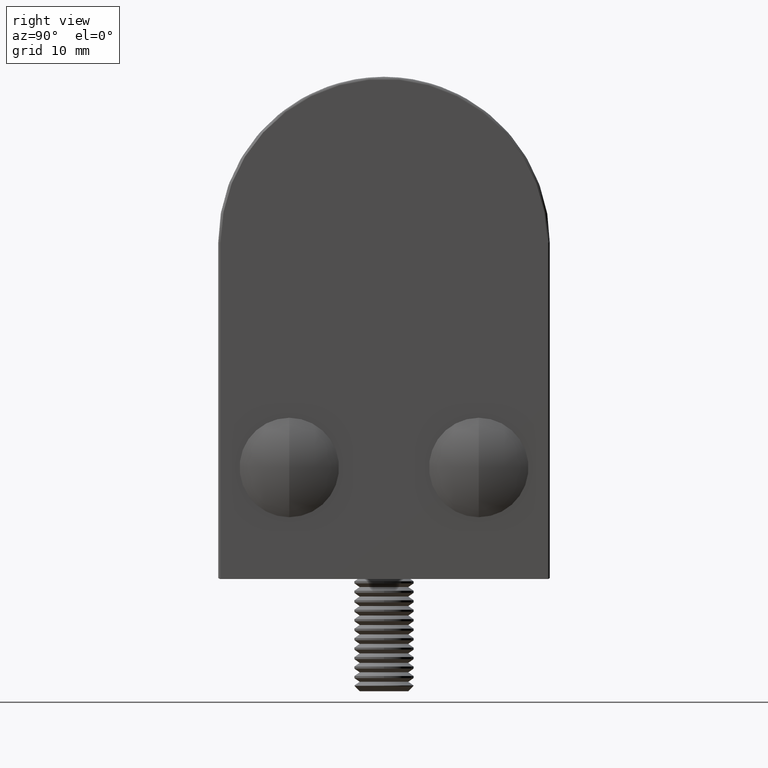
[diagram: clean part render]
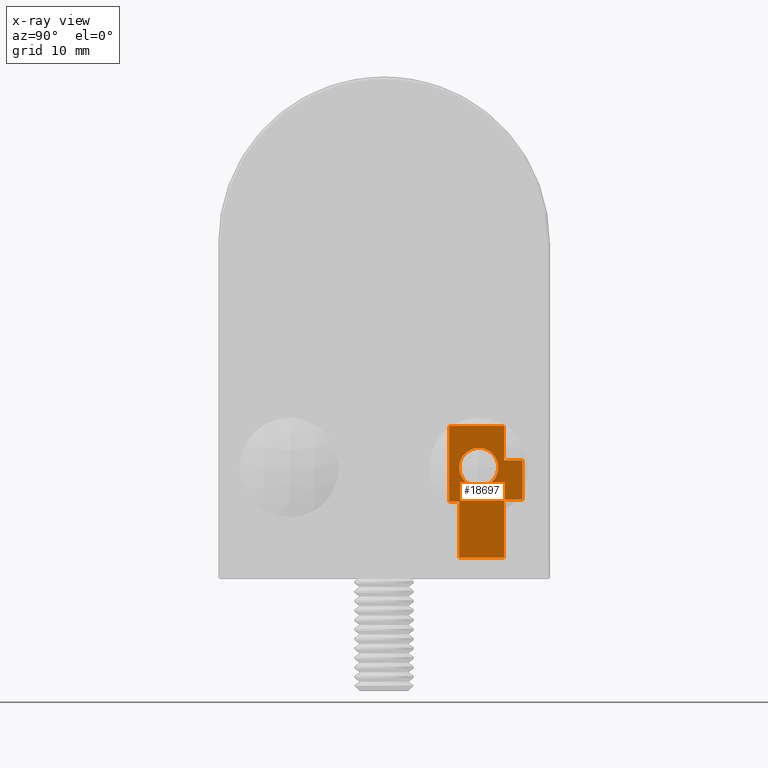
[diagram: x-ray — body ghosted, one internal face saturated and labeled with its STEP entity id]
A machine part, right view, then the same camera in x-ray: the body is ghosted and one INTERNAL B-rep face — a face not visible from any outside direction — is saturated and labeled: STEP entity #18697.
In plain terms, the highlighted planar face has unit normal (1, 0, 0).
Its self-contained STEP definition (entity closure, byte-faithful):
#96 = DIRECTION ( 'NONE',  ( 1.000000000000000000, -0.0000000000000000000, 0.0000000000000000000 ) ) ;
#317 = EDGE_CURVE ( 'NONE', #22540, #17020, #23982, .T. ) ;
#725 = EDGE_CURVE ( 'NONE', #32225, #29106, #25500, .T. ) ;
#3427 = ORIENTED_EDGE ( 'NONE', *, *, #29839, .T. ) ;
#4083 = CARTESIAN_POINT ( 'NONE',  ( 13.29999999999999900, 6.349999999999997900, 4.099999999999993400 ) ) ;
#5463 = VERTEX_POINT ( 'NONE', #52525 ) ;
#6949 = CARTESIAN_POINT ( 'NONE',  ( 13.29999999999999900, 8.000000000000000000, 6.999999999999997300 ) ) ;
#7179 = CARTESIAN_POINT ( 'NONE',  ( 13.29999999999999900, 11.70000000000000300, 7.599999999999997000 ) ) ;
#7349 = VERTEX_POINT ( 'NONE', #32949 ) ;
#8684 = VECTOR ( 'NONE', #30821, 1000.000000000000000 ) ;
#8789 = CARTESIAN_POINT ( 'NONE',  ( 13.29999999999999900, 11.70000000000000300, 4.299999999999996300 ) ) ;
#8883 = FACE_OUTER_BOUND ( 'NONE', #42109, .T. ) ;
#9025 = DIRECTION ( 'NONE',  ( 0.0000000000000000000, -1.000000000000000000, 0.0000000000000000000 ) ) ;
#9381 = ORIENTED_EDGE ( 'NONE', *, *, #725, .T. ) ;
#9398 = CARTESIAN_POINT ( 'NONE',  ( 13.29999999999999900, 6.350000000000009400, -0.6400493523268275800 ) ) ;
#9719 = VERTEX_POINT ( 'NONE', #13907 ) ;
#11833 = DIRECTION ( 'NONE',  ( 0.0000000000000000000, 0.0000000000000000000, -1.000000000000000000 ) ) ;
#12222 = ORIENTED_EDGE ( 'NONE', *, *, #22404, .T. ) ;
#12284 = VECTOR ( 'NONE', #12296, 1000.000000000000000 ) ;
#12296 = DIRECTION ( 'NONE',  ( 0.0000000000000000000, 2.538619720941671800E-015, -1.000000000000000000 ) ) ;
#12685 = CARTESIAN_POINT ( 'NONE',  ( 13.29999999999999900, 5.499999999999999100, 4.099999999999997000 ) ) ;
#13907 = CARTESIAN_POINT ( 'NONE',  ( 13.29999999999999900, 5.499999999999999100, 10.49999999999999600 ) ) ;
#14304 = LINE ( 'NONE', #12685, #27853 ) ;
#16150 = CARTESIAN_POINT ( 'NONE',  ( 13.29999999999999900, 11.70000000000000300, 7.599999999999997000 ) ) ;
#16876 = DIRECTION ( 'NONE',  ( 0.0000000000000000000, 1.000000000000000000, -4.081702296416020700E-015 ) ) ;
#17020 = VERTEX_POINT ( 'NONE', #45500 ) ;
#17285 = CARTESIAN_POINT ( 'NONE',  ( 13.29999999999999900, 6.349999999999997900, 4.099999999999993400 ) ) ;
#18697 = ADVANCED_FACE ( 'NONE', ( #8883, #55565 ), #19129, .T. ) ;
#18699 = CARTESIAN_POINT ( 'NONE',  ( 13.29999999999999900, 0.0000000000000000000, 0.0000000000000000000 ) ) ;
#19014 = VECTOR ( 'NONE', #9025, 1000.000000000000000 ) ;
#19129 = PLANE ( 'NONE',  #26230 ) ;
#21293 = DIRECTION ( 'NONE',  ( 1.000000000000000000, -0.0000000000000000000, -0.0000000000000000000 ) ) ;
#21326 = EDGE_CURVE ( 'NONE', #28599, #29545, #38000, .T. ) ;
#21716 = CARTESIAN_POINT ( 'NONE',  ( 13.29999999999999900, 11.70000000000000300, 4.299999999999996300 ) ) ;
#22404 = EDGE_CURVE ( 'NONE', #29545, #23138, #24987, .T. ) ;
#22540 = VERTEX_POINT ( 'NONE', #35484 ) ;
#23138 = VERTEX_POINT ( 'NONE', #16150 ) ;
#23193 = ORIENTED_EDGE ( 'NONE', *, *, #42110, .T. ) ;
#23261 = ORIENTED_EDGE ( 'NONE', *, *, #317, .F. ) ;
#23727 = EDGE_CURVE ( 'NONE', #9719, #43783, #41501, .T. ) ;
#23982 = CIRCLE ( 'NONE', #41603, 1.649999999999998600 ) ;
#24176 = VERTEX_POINT ( 'NONE', #40406 ) ;
#24187 = DIRECTION ( 'NONE',  ( 0.0000000000000000000, 0.0000000000000000000, -1.000000000000000000 ) ) ;
#24327 = ORIENTED_EDGE ( 'NONE', *, *, #50278, .T. ) ;
#24987 = LINE ( 'NONE', #7179, #37695 ) ;
#25005 = VECTOR ( 'NONE', #46473, 1000.000000000000000 ) ;
#25500 = LINE ( 'NONE', #39533, #27782 ) ;
#25983 = CARTESIAN_POINT ( 'NONE',  ( 13.29999999999999900, -13.99999999999999500, -0.6400493523268275800 ) ) ;
#26141 = VERTEX_POINT ( 'NONE', #9398 ) ;
#26230 = AXIS2_PLACEMENT_3D ( 'NONE', #18699, #96, #24187 ) ;
#27235 = VECTOR ( 'NONE', #46843, 1000.000000000000000 ) ;
#27782 = VECTOR ( 'NONE', #54108, 1000.000000000000000 ) ;
#27853 = VECTOR ( 'NONE', #16876, 1000.000000000000000 ) ;
#27976 = CARTESIAN_POINT ( 'NONE',  ( 13.29999999999999900, 10.14999999999999900, 4.299999999999996300 ) ) ;
#28599 = VERTEX_POINT ( 'NONE', #38820 ) ;
#28665 = LINE ( 'NONE', #25983, #41403 ) ;
#29106 = VERTEX_POINT ( 'NONE', #40196 ) ;
#29545 = VERTEX_POINT ( 'NONE', #8789 ) ;
#29839 = EDGE_CURVE ( 'NONE', #23138, #32225, #61267, .T. ) ;
#30821 = DIRECTION ( 'NONE',  ( -0.0000000000000000000, 1.000000000000000000, -0.0000000000000000000 ) ) ;
#30853 = EDGE_CURVE ( 'NONE', #24176, #28599, #37776, .T. ) ;
#32104 = VECTOR ( 'NONE', #34666, 1000.000000000000000 ) ;
#32225 = VERTEX_POINT ( 'NONE', #62135 ) ;
#32949 = CARTESIAN_POINT ( 'NONE',  ( 13.29999999999999900, 6.349999999999997900, 4.099999999999993400 ) ) ;
#34133 = VECTOR ( 'NONE', #40974, 1000.000000000000000 ) ;
#34343 = LINE ( 'NONE', #4083, #32104 ) ;
#34666 = DIRECTION ( 'NONE',  ( 0.0000000000000000000, 2.538619720941671800E-015, -1.000000000000000000 ) ) ;
#35484 = CARTESIAN_POINT ( 'NONE',  ( 13.29999999999999900, 8.000000000000000000, 5.349999999999998800 ) ) ;
#37606 = CARTESIAN_POINT ( 'NONE',  ( 13.29999999999999900, 10.14999999999999900, 10.49999999999999600 ) ) ;
#37695 = VECTOR ( 'NONE', #55572, 1000.000000000000000 ) ;
#37776 = LINE ( 'NONE', #27976, #25005 ) ;
#38000 = LINE ( 'NONE', #21716, #8684 ) ;
#38060 = ORIENTED_EDGE ( 'NONE', *, *, #30853, .T. ) ;
#38820 = CARTESIAN_POINT ( 'NONE',  ( 13.29999999999999900, 10.14999999999999900, 4.299999999999996300 ) ) ;
#39533 = CARTESIAN_POINT ( 'NONE',  ( 13.29999999999999900, 10.14999999999999900, 10.49999999999999600 ) ) ;
#40196 = CARTESIAN_POINT ( 'NONE',  ( 13.29999999999999900, 10.14999999999999900, 10.49999999999999600 ) ) ;
#40231 = EDGE_CURVE ( 'NONE', #17020, #22540, #56043, .T. ) ;
#40406 = CARTESIAN_POINT ( 'NONE',  ( 13.29999999999999900, 10.14999999999999900, -0.6400493523268275800 ) ) ;
#40974 = DIRECTION ( 'NONE',  ( -0.0000000000000000000, -1.000000000000000000, -0.0000000000000000000 ) ) ;
#41403 = VECTOR ( 'NONE', #55668, 1000.000000000000000 ) ;
#41501 = LINE ( 'NONE', #52156, #27235 ) ;
#41575 = LINE ( 'NONE', #37606, #19014 ) ;
#41603 = AXIS2_PLACEMENT_3D ( 'NONE', #45289, #21293, #11833 ) ;
#41787 = ORIENTED_EDGE ( 'NONE', *, *, #46766, .T. ) ;
#42109 = EDGE_LOOP ( 'NONE', ( #47629, #38060, #47611, #12222, #3427, #9381, #24327, #59874, #43262, #23193, #41787 ) ) ;
#42110 = EDGE_CURVE ( 'NONE', #7349, #5463, #49932, .T. ) ;
#43262 = ORIENTED_EDGE ( 'NONE', *, *, #53634, .T. ) ;
#43783 = VERTEX_POINT ( 'NONE', #62008 ) ;
#44105 = AXIS2_PLACEMENT_3D ( 'NONE', #6949, #46032, #45823 ) ;
#45289 = CARTESIAN_POINT ( 'NONE',  ( 13.29999999999999900, 8.000000000000000000, 6.999999999999997300 ) ) ;
#45420 = CARTESIAN_POINT ( 'NONE',  ( 13.29999999999999900, 10.14999999999999900, 7.599999999999997000 ) ) ;
#45500 = CARTESIAN_POINT ( 'NONE',  ( 13.29999999999999900, 8.000000000000000000, 8.649999999999996800 ) ) ;
#45778 = EDGE_LOOP ( 'NONE', ( #23261, #55500 ) ) ;
#45823 = DIRECTION ( 'NONE',  ( 0.0000000000000000000, 0.0000000000000000000, -1.000000000000000000 ) ) ;
#46032 = DIRECTION ( 'NONE',  ( 1.000000000000000000, -0.0000000000000000000, -0.0000000000000000000 ) ) ;
#46473 = DIRECTION ( 'NONE',  ( -0.0000000000000000000, -0.0000000000000000000, 1.000000000000000000 ) ) ;
#46766 = EDGE_CURVE ( 'NONE', #5463, #26141, #34343, .T. ) ;
#46843 = DIRECTION ( 'NONE',  ( 0.0000000000000000000, 0.0000000000000000000, -1.000000000000000000 ) ) ;
#47611 = ORIENTED_EDGE ( 'NONE', *, *, #21326, .T. ) ;
#47629 = ORIENTED_EDGE ( 'NONE', *, *, #53545, .F. ) ;
#49932 = LINE ( 'NONE', #17285, #12284 ) ;
#50278 = EDGE_CURVE ( 'NONE', #29106, #9719, #41575, .T. ) ;
#52156 = CARTESIAN_POINT ( 'NONE',  ( 13.29999999999999900, 5.499999999999999100, 10.49999999999999600 ) ) ;
#52525 = CARTESIAN_POINT ( 'NONE',  ( 13.29999999999999900, 6.349999999999997900, 1.599999999999995400 ) ) ;
#53545 = EDGE_CURVE ( 'NONE', #24176, #26141, #28665, .T. ) ;
#53634 = EDGE_CURVE ( 'NONE', #43783, #7349, #14304, .T. ) ;
#54108 = DIRECTION ( 'NONE',  ( -0.0000000000000000000, -0.0000000000000000000, 1.000000000000000000 ) ) ;
#55500 = ORIENTED_EDGE ( 'NONE', *, *, #40231, .F. ) ;
#55565 = FACE_BOUND ( 'NONE', #45778, .T. ) ;
#55572 = DIRECTION ( 'NONE',  ( -0.0000000000000000000, -0.0000000000000000000, 1.000000000000000000 ) ) ;
#55668 = DIRECTION ( 'NONE',  ( 0.0000000000000000000, -1.000000000000000000, 0.0000000000000000000 ) ) ;
#56043 = CIRCLE ( 'NONE', #44105, 1.649999999999998600 ) ;
#59874 = ORIENTED_EDGE ( 'NONE', *, *, #23727, .T. ) ;
#61267 = LINE ( 'NONE', #45420, #34133 ) ;
#62008 = CARTESIAN_POINT ( 'NONE',  ( 13.29999999999999900, 5.499999999999998200, 4.099999999999993400 ) ) ;
#62135 = CARTESIAN_POINT ( 'NONE',  ( 13.29999999999999900, 10.14999999999999900, 7.599999999999997000 ) ) ;